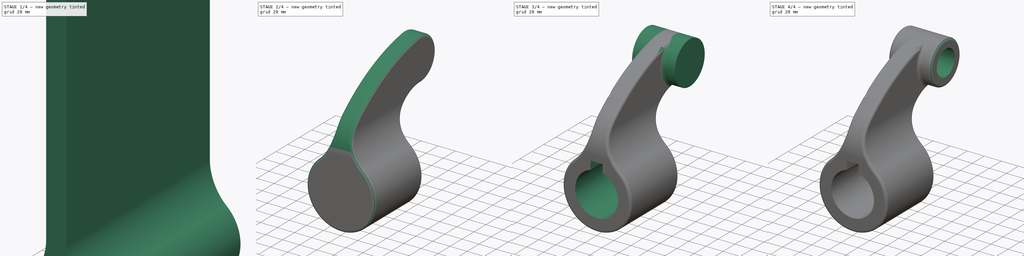
[diagram: build sequence overview — one tinted view per stage of 4, left to right]
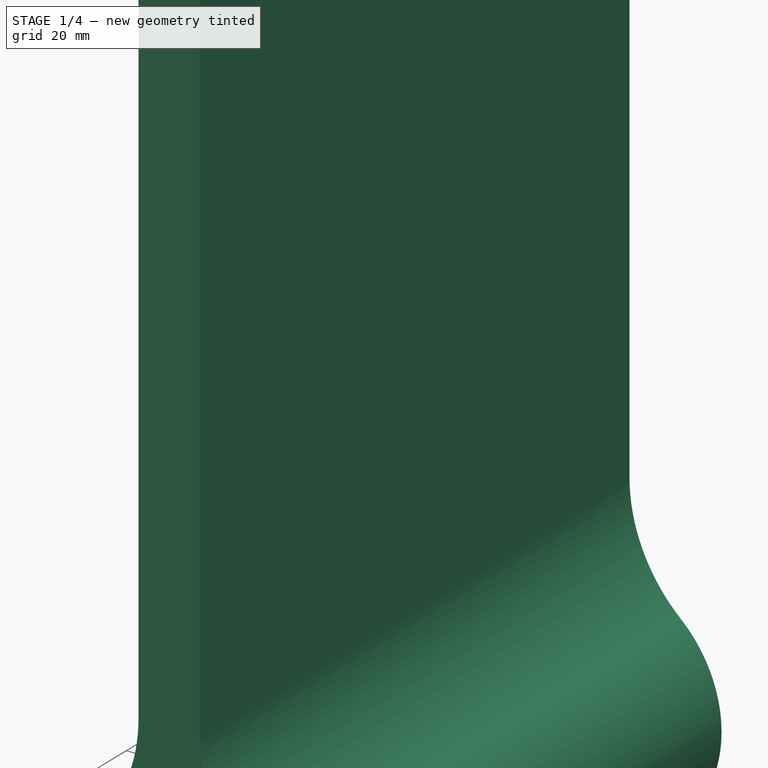
[diagram: stage 1 of 4 — iso view after this stage's code; geometry added in this stage tinted green]
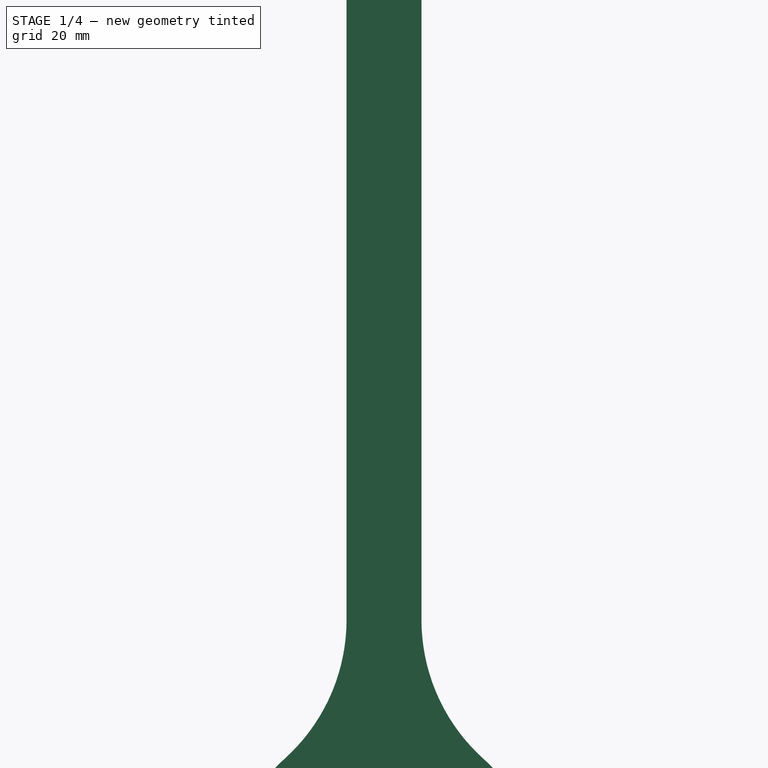
[diagram: stage 1 of 4 — front view after this stage's code; geometry added in this stage tinted green]
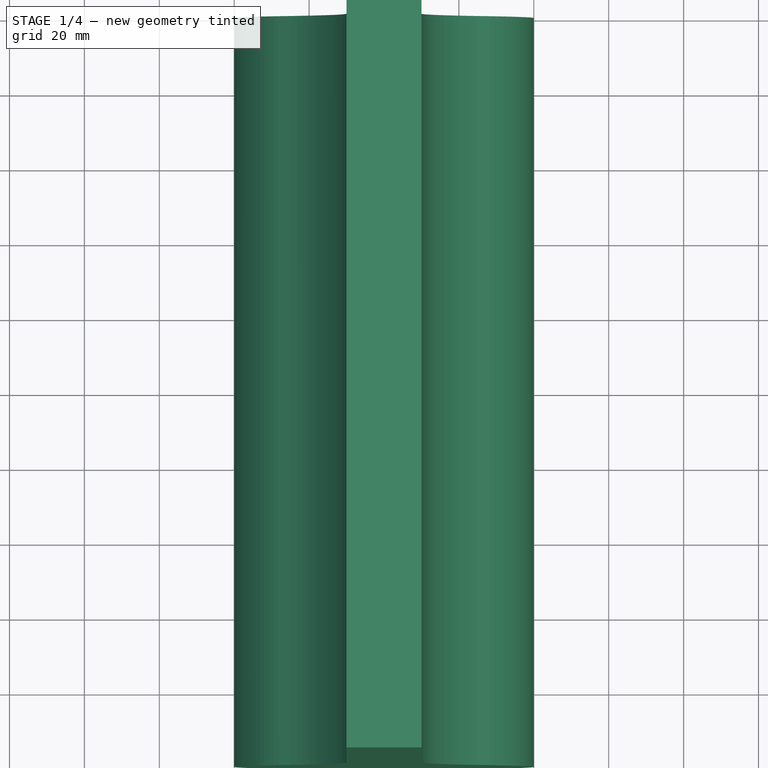
[diagram: stage 1 of 4 — top view after this stage's code; geometry added in this stage tinted green]
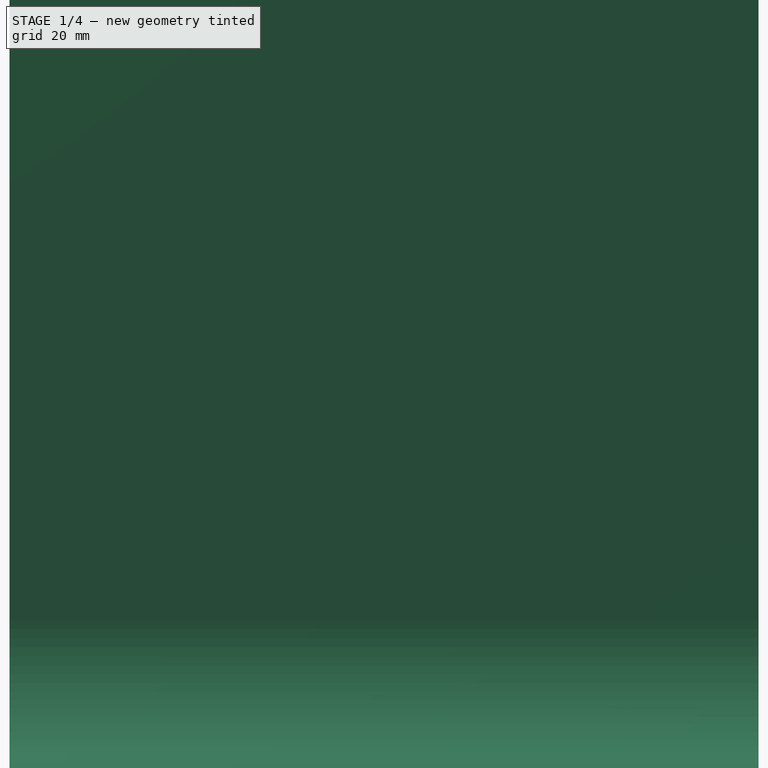
[diagram: stage 1 of 4 — right view after this stage's code; geometry added in this stage tinted green]
FCSTD DOCUMENT  (FreeCAD 0.21R33771 (Git))
Label: ex54
License: All rights reserved
LicenseURL: https://en.wikipedia.org/wiki/All_rights_reserved
objects: Sketcher::SketchObject×5, PartDesign::Fillet×4, PartDesign::Pocket×3, PartDesign::Pad×2, PartDesign::Body×1
note: 24 computed .brp shape members not serialized (recipe doc carries the construction recipe); baked Part::Feature solids carry a one-line shape summary decoded from their .brp

FEATURE [Sketcher::SketchObject] Sketch
  FullyConstrained = false
  MapMode = 5
  Placement = pos=(0,0,0) rot=(1,0,0;1.5708rad)
  Support = -> [XZ_Plane]
  sketch-geometry (5):
    g0: ArcOfCircle CenterX=-1.54e-14 CenterY=0 CenterZ=0 NormalX=0 NormalY=0 NormalZ=1 AngleXU=0 Radius=40 StartAngle=1.82348 EndAngle=7.6013
    g1: LineSegment StartX=-10 StartY=38.7298 StartZ=0 EndX=-10 EndY=300 EndZ=0
    g2: LineSegment StartX=-10 StartY=300 StartZ=0 EndX=10 EndY=300 EndZ=0
    g3: LineSegment StartX=10 StartY=300 StartZ=0 EndX=10 EndY=38.7298 EndZ=0
    g4: GeomPoint X=0 Y=155.877 Z=0
  constraints (13):
    c: Horizontal(g2)
    c: PointOnObject(g4,g-2)
    c: Coincident(g0,g3)
    c: Coincident(g0,g1)
    c: Parallel(g1,g3)
    c: Parallel(g1,g-2)
    c: Symmetric(g0,g0,g-2)
    c: Radius(g0) = 40
    c: Coincident(g0,g-1)
    c: Coincident(g3,g2)
    c: Coincident(g2,g1)
    c: DistanceX(g2,g2) = 20
    c: DistanceY(g0,g2) = 300
FEATURE [PartDesign::Pad] Pad
  Direction = (0,-1,-2e-16)
  Length = 200
  Length2 = 10
  Placement = pos=(0,0,0) rot=(1,0,0;1.5708rad)
  Profile = -> Sketch
  ReferenceAxis = -> Sketch [N_Axis]
  Reversed = true
  Type = 0
FEATURE [PartDesign::Fillet] Fillet
  Base = -> Pad [Edge2,Edge1]
  BaseFeature = -> Pad
  Placement = pos=(0,0,0) rot=(1,0,0;1.5708rad)
  Radius = 50
  SupportTransform = false
  UseAllEdges = false
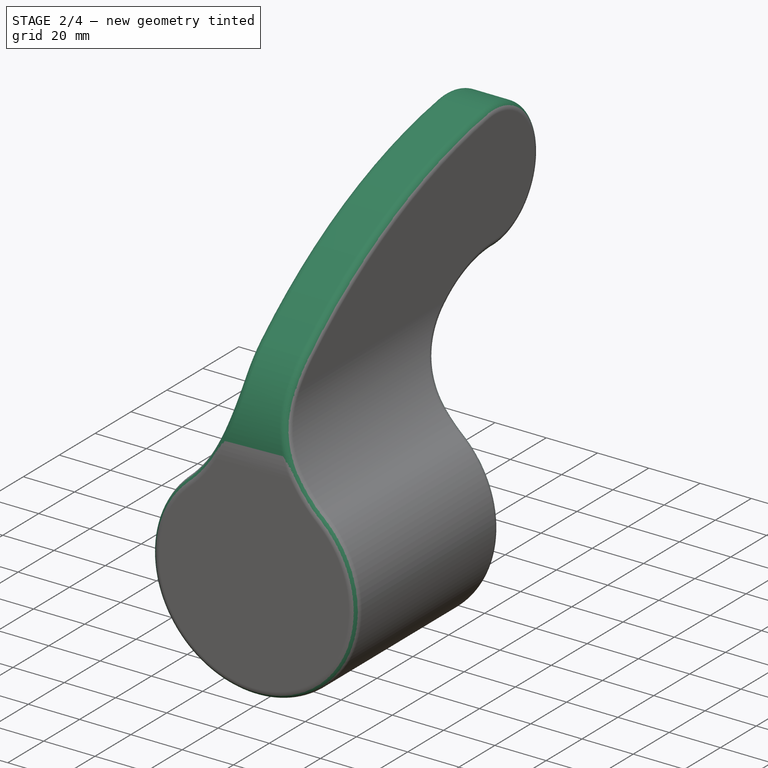
[diagram: stage 2 of 4 — iso view after this stage's code; geometry added in this stage tinted green]
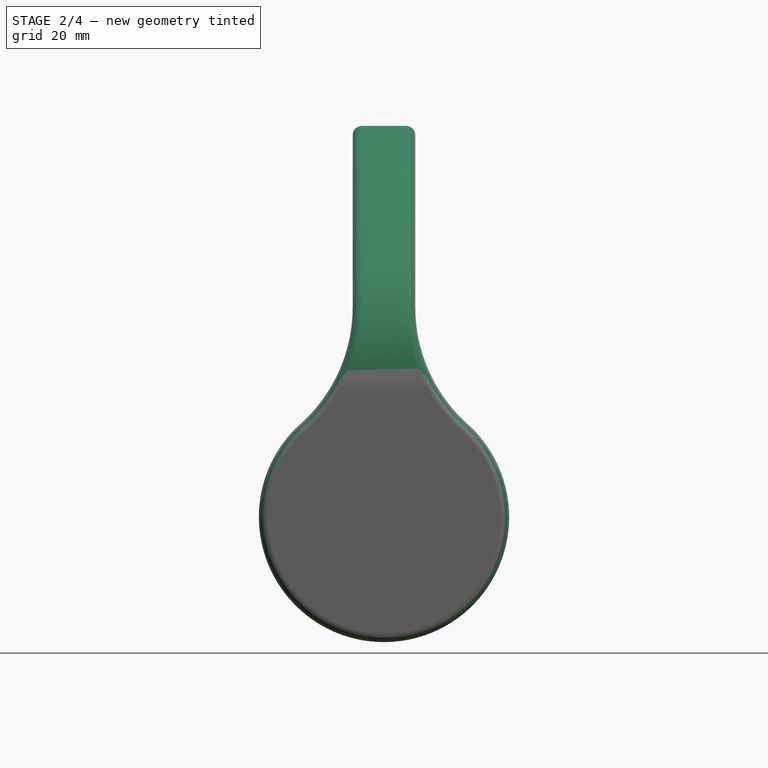
[diagram: stage 2 of 4 — front view after this stage's code; geometry added in this stage tinted green]
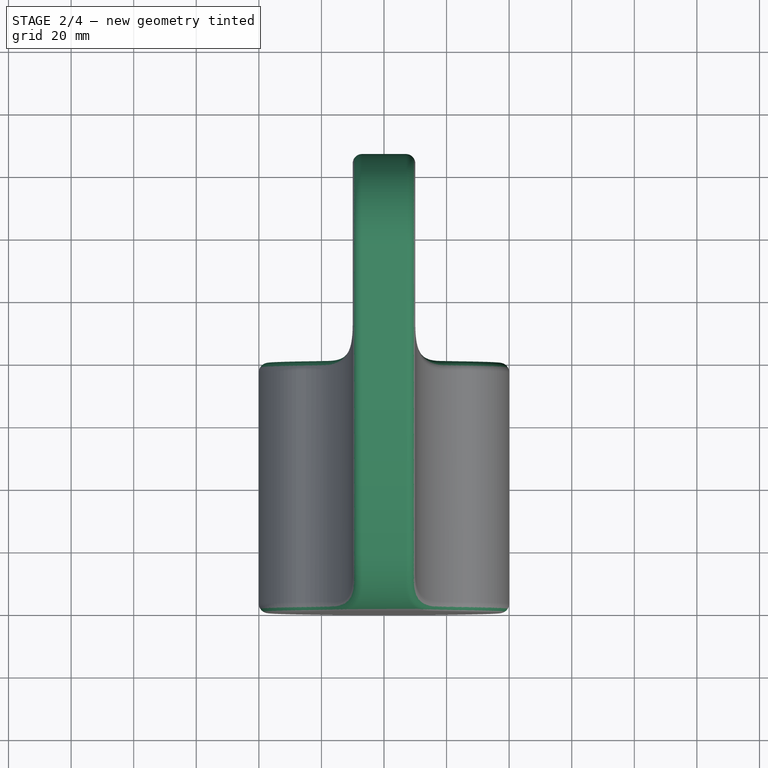
[diagram: stage 2 of 4 — top view after this stage's code; geometry added in this stage tinted green]
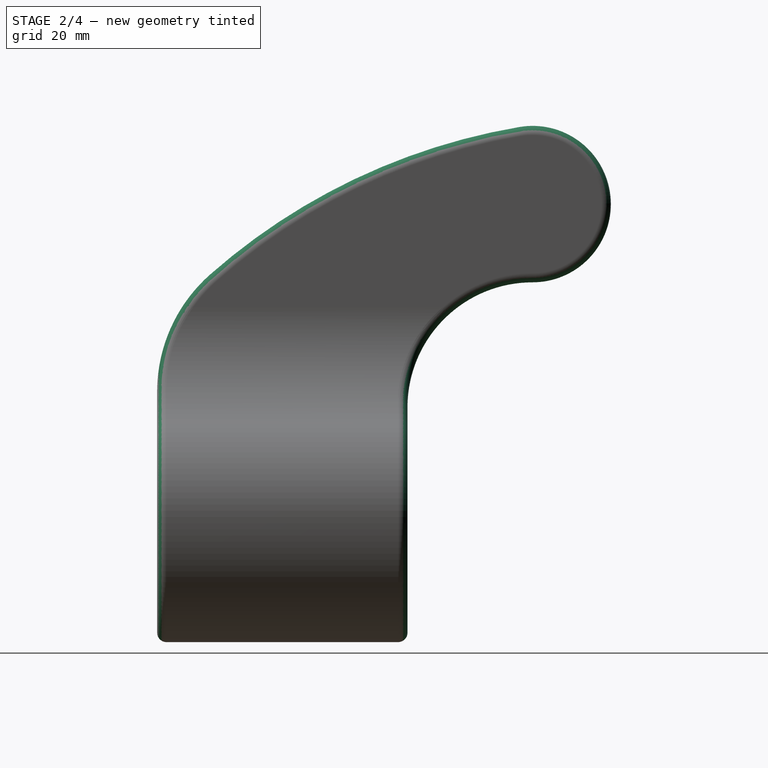
[diagram: stage 2 of 4 — right view after this stage's code; geometry added in this stage tinted green]
FEATURE [Sketcher::SketchObject] Sketch001
  FullyConstrained = false
  MapMode = 5
  Placement = pos=(0,-3e-16,0) rot=(1,0,0;1.5708rad)
  Support = -> [Fillet]
  sketch-geometry (5):
    g0: ArcOfCircle CenterX=0 CenterY=0 CenterZ=0 NormalX=0 NormalY=0 NormalZ=1 AngleXU=0 Radius=25 StartAngle=1.85459 EndAngle=7.57019
    g1: LineSegment StartX=-7 StartY=33.8005 StartZ=0 EndX=7 EndY=33.8005 EndZ=0
    g2: LineSegment StartX=7 StartY=33.8005 StartZ=0 EndX=7 EndY=24 EndZ=0
    g3: GeomPoint X=0 Y=0 Z=0
    g4: LineSegment StartX=-7 StartY=24 StartZ=0 EndX=-7 EndY=33.8005 EndZ=0
  constraints (10):
    c: Coincident(g0,g-1)
    c: Coincident(g4,g1)
    c: Coincident(g1,g2)
    c: Horizontal(g1)
    c: Vertical(g2)
    c: Coincident(g3,g0)
    c: DistanceX(g1,g1) = 14
    c: Radius(g0) = 25
    c: Coincident(g0,g2)
    c: Coincident(g4,g0)
FEATURE [Sketcher::SketchObject] Sketch002
  FullyConstrained = true
  MapMode = 5
  Placement = pos=(0,0,0) rot=(0.57735,0.57735,0.57735;2.0944rad)
  Support = -> [YZ_Plane]
  sketch-geometry (9):
    g0: ArcOfCircle CenterX=120 CenterY=100 CenterZ=0 NormalX=0 NormalY=0 NormalZ=1 AngleXU=0 Radius=25 StartAngle=4.71239 EndAngle=8.02136
    g1: ArcOfCircle CenterX=50 CenterY=40 CenterZ=0 NormalX=0 NormalY=0 NormalZ=1 AngleXU=0 Radius=50 StartAngle=2.29298 EndAngle=3.14159
    g2: ArcOfCircle CenterX=149.154 CenterY=-72.5545 CenterZ=0 NormalX=0 NormalY=0 NormalZ=1 AngleXU=0 Radius=200 StartAngle=1.73817 EndAngle=2.29298
    g3: LineSegment StartX=0 StartY=40 StartZ=0 EndX=0 EndY=0 EndZ=0
    g4: ArcOfCircle CenterX=120 CenterY=35 CenterZ=0 NormalX=0 NormalY=0 NormalZ=1 AngleXU=0 Radius=40 StartAngle=1.5708 EndAngle=3.14159
    g5: LineSegment StartX=80 StartY=35 StartZ=0 EndX=80 EndY=0 EndZ=0
    g6: LineSegment StartX=0 StartY=0 StartZ=0 EndX=-1.066e-13 EndY=-150.13 EndZ=0
    g7: LineSegment StartX=80 StartY=0 StartZ=0 EndX=80 EndY=-150.13 EndZ=0
    g8: ArcOfCircle CenterX=40 CenterY=194.104 CenterZ=0 NormalX=0 NormalY=0 NormalZ=1 AngleXU=0 Radius=346.55 StartAngle=4.82807 EndAngle=10.8799
  constraints (26):
    c: DistanceX(g-1,g0) = 120
    c: DistanceY(g-1,g0) = 100
    c: Radius(g0) = 25
    c: Radius(g1) = 50
    c: Tangent(g2,g1) = -1.5708
    c: Radius(g2) = 200
    c: Tangent(g3,g1) = -1.5708
    c: DistanceY(g-1,g1) = 40
    c: Coincident(g3,g-1)
    c: PointOnObject(g5,g-1)
    c: Vertical(g5)
    c: Tangent(g4,g0) = 1.5708
    c: Tangent(g4,g5) = -1.5708
    c: DistanceX(g3,g5) = 80
    c: Radius(g4) = 40
    c: Tangent(g0,g2) = -1.5708
    c: Coincident(g6,g3)
    c: PointOnObject(g6,g-2)
    c: Coincident(g7,g5)
    c: Vertical(g7)
    c: Coincident(g8,g6)
    c: Coincident(g8,g7)
    c: Horizontal(g7,g6)
    c: Vertical(g3)
    c: Radius(g8) = 346.55
    c: DistanceY(g6,g6) = 150.13
FEATURE [PartDesign::Pocket] Pocket
  BaseFeature = -> Fillet
  Direction = (-1,2e-16,-3e-16)
  Length = 5
  Length2 = 5
  Midplane = true
  Placement = pos=(0,0,0) rot=(1,0,0;1.5708rad)
  Profile = -> Sketch002
  ReferenceAxis = -> Sketch002 [N_Axis]
  Type = 1
FEATURE [PartDesign::Fillet] Fillet001
  Base = -> Pocket [Edge30]
  BaseFeature = -> Pocket
  Placement = pos=(0,0,0) rot=(1,0,0;1.5708rad)
  Radius = 3
  SupportTransform = false
  UseAllEdges = false
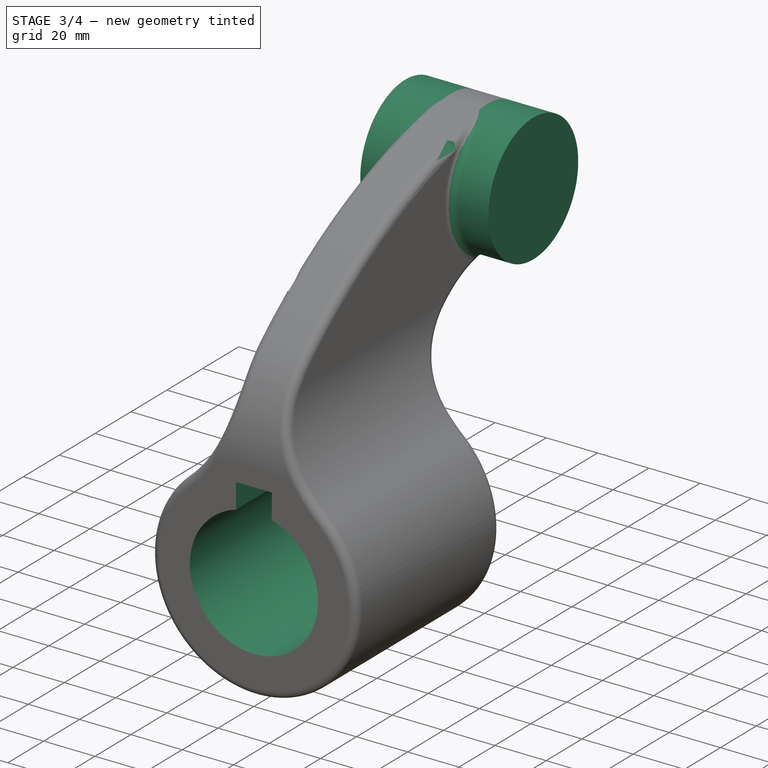
[diagram: stage 3 of 4 — iso view after this stage's code; geometry added in this stage tinted green]
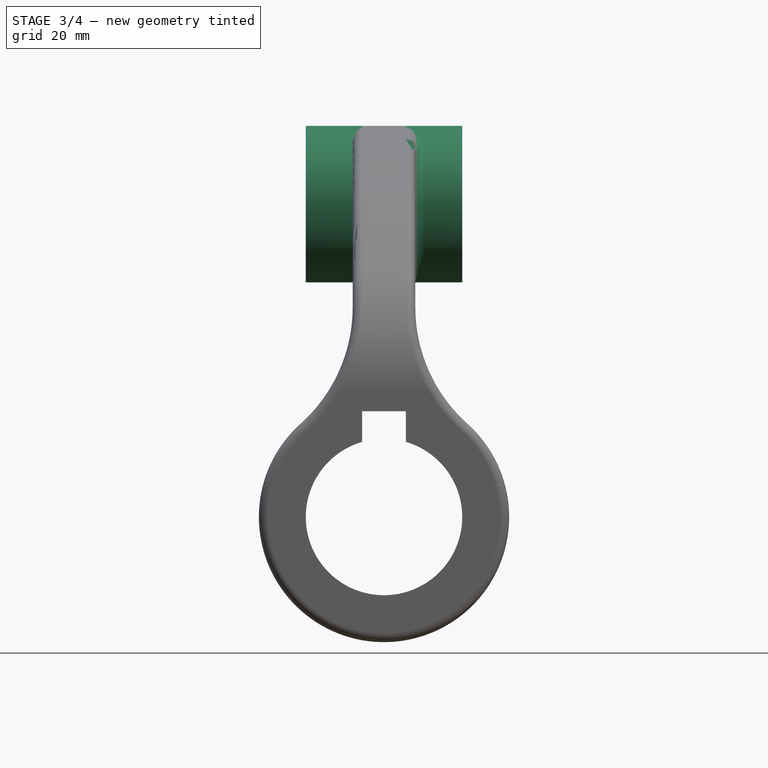
[diagram: stage 3 of 4 — front view after this stage's code; geometry added in this stage tinted green]
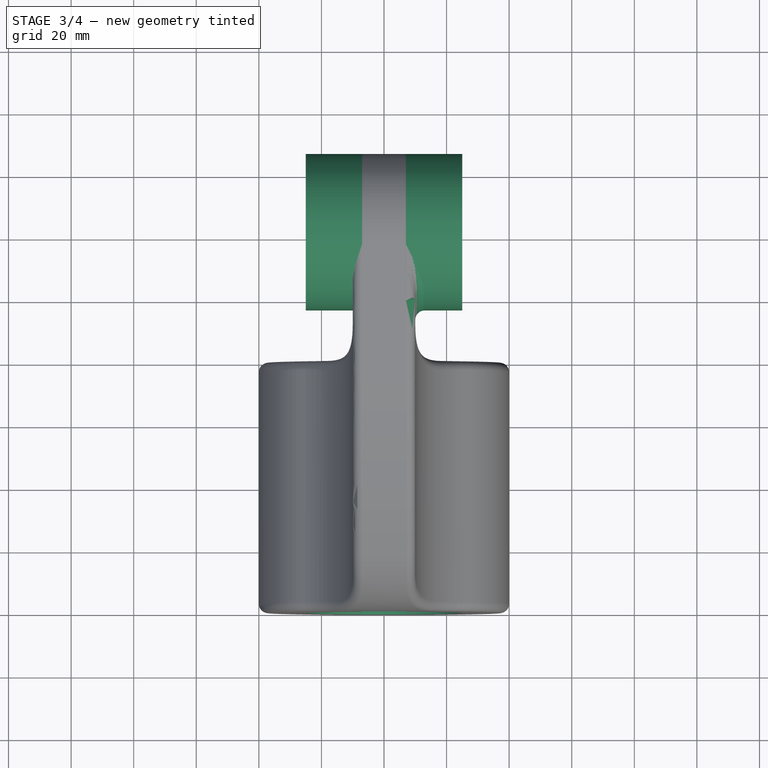
[diagram: stage 3 of 4 — top view after this stage's code; geometry added in this stage tinted green]
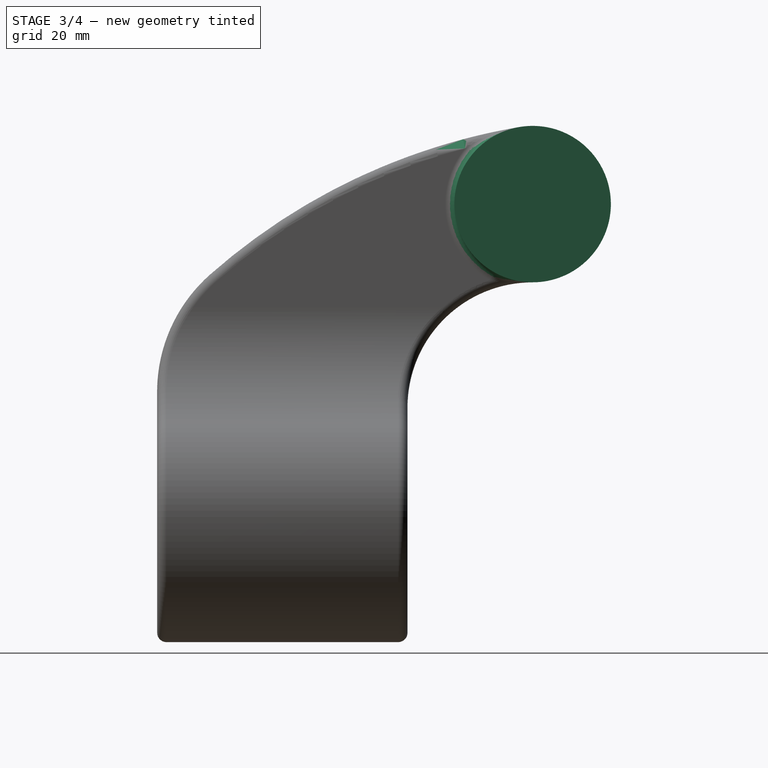
[diagram: stage 3 of 4 — right view after this stage's code; geometry added in this stage tinted green]
FEATURE [PartDesign::Pocket] Pocket001
  BaseFeature = -> Fillet001
  Direction = (0,1,-2e-16)
  Length = 5
  Length2 = 5
  Placement = pos=(0,0,0) rot=(1,0,0;1.5708rad)
  Profile = -> Sketch001
  ReferenceAxis = -> Sketch001 [N_Axis]
  Type = 1
FEATURE [Sketcher::SketchObject] Sketch003
  AttachmentOffset = pos=(0,0,-10) rot=(0,0,1;0rad)
  ExternalGeometry = -> [Pocket001]
  FullyConstrained = true
  MapMode = 5
  Placement = pos=(3.6e-15,0,-2.1e-15) rot=(0.707107,0,0.707107;3.14159rad)
  Support = -> [Pocket001]
  sketch-geometry (1):
    g0: Circle CenterX=100 CenterY=-120 CenterZ=0 NormalX=0 NormalY=0 NormalZ=1 AngleXU=0 Radius=25
  constraints (2):
    c: Coincident(g0,g-3)
    c: Radius(g0) = 25
FEATURE [PartDesign::Pad] Pad001
  BaseFeature = -> Pocket001
  Direction = (1,0,2e-16)
  Length = 50
  Length2 = 10
  Midplane = true
  Placement = pos=(0,0,0) rot=(1,0,0;1.5708rad)
  Profile = -> Sketch003
  ReferenceAxis = -> Sketch003 [N_Axis]
  Type = 0
FEATURE [PartDesign::Fillet] Fillet002
  Base = -> Pad001 [Edge42]
  BaseFeature = -> Pad001
  Placement = pos=(0,0,0) rot=(1,0,0;1.5708rad)
  Radius = 3
  SupportTransform = false
  UseAllEdges = false
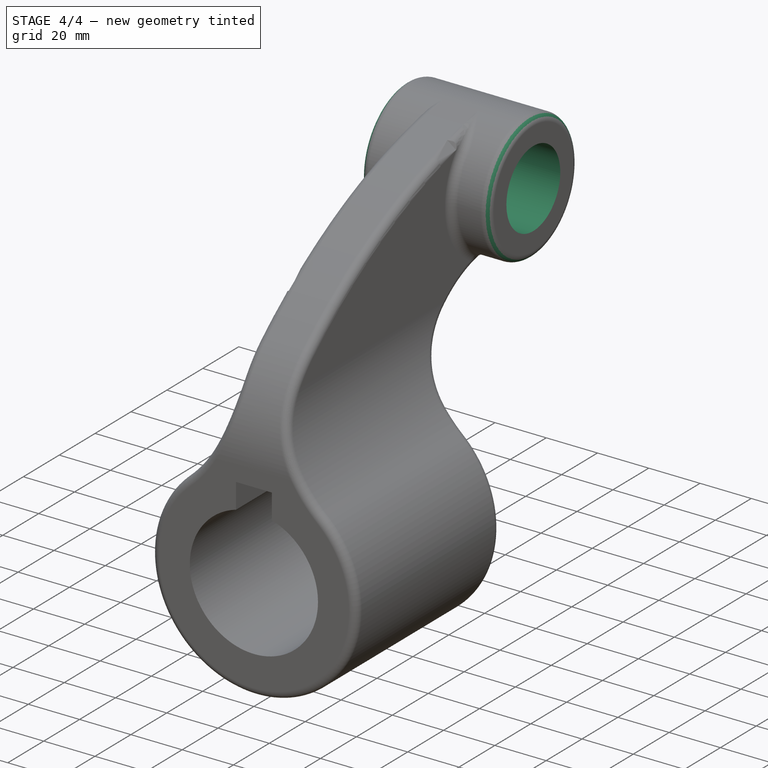
[diagram: stage 4 of 4 — iso view after this stage's code; geometry added in this stage tinted green]
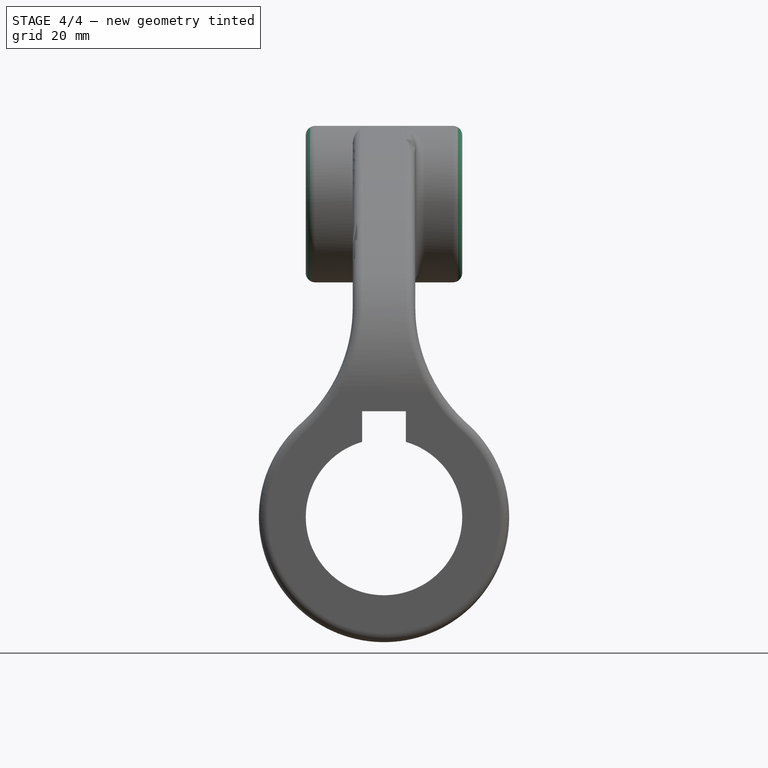
[diagram: stage 4 of 4 — front view after this stage's code; geometry added in this stage tinted green]
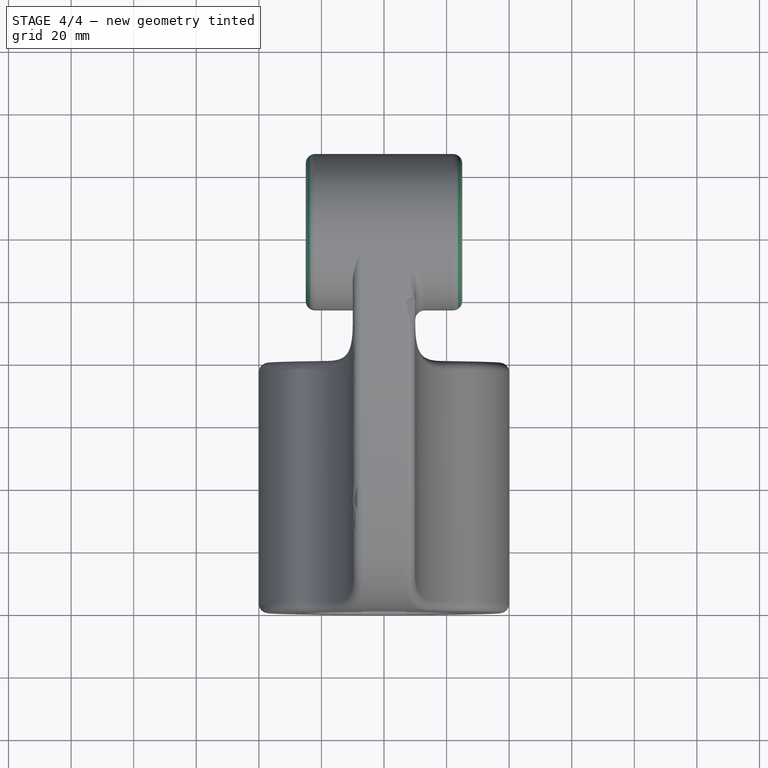
[diagram: stage 4 of 4 — top view after this stage's code; geometry added in this stage tinted green]
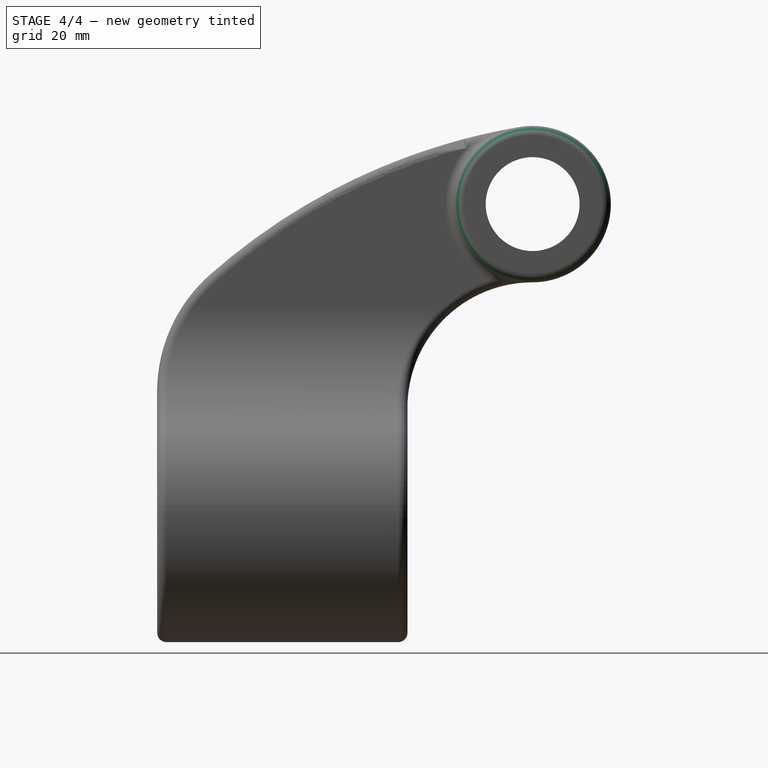
[diagram: stage 4 of 4 — right view after this stage's code; geometry added in this stage tinted green]
FEATURE [Sketcher::SketchObject] Sketch004
  ExternalGeometry = -> [Fillet002]
  FullyConstrained = true
  MapMode = 5
  Placement = pos=(25,0,5.6e-15) rot=(0.707107,0,0.707107;3.14159rad)
  Support = -> [Fillet002]
  sketch-geometry (1):
    g0: Circle CenterX=100 CenterY=-120 CenterZ=0 NormalX=0 NormalY=0 NormalZ=1 AngleXU=0 Radius=15
  constraints (2):
    c: Coincident(g0,g-3)
    c: Radius(g0) = 15
FEATURE [PartDesign::Pocket] Pocket002
  BaseFeature = -> Fillet002
  Direction = (-1,0,-2e-16)
  Length = 5
  Length2 = 5
  Placement = pos=(0,0,0) rot=(1,0,0;1.5708rad)
  Profile = -> Sketch004
  ReferenceAxis = -> Sketch004 [N_Axis]
  Type = 1
FEATURE [PartDesign::Fillet] Fillet003
  Base = -> Pocket002 [Edge33,Edge109]
  BaseFeature = -> Pocket002
  Placement = pos=(0,0,0) rot=(1,0,0;1.5708rad)
  Radius = 3
  SupportTransform = false
  UseAllEdges = false
FEATURE [PartDesign::Body] Body
  Group = -> [Sketch,Pad,Fillet,Sketch001,Sketch002,Pocket,Fillet001,Pocket001,Sketch003,Pad001,Fillet002,Sketch004,Pocket002,Fillet003]
  Origin = -> Origin
  Tip = -> Fillet003
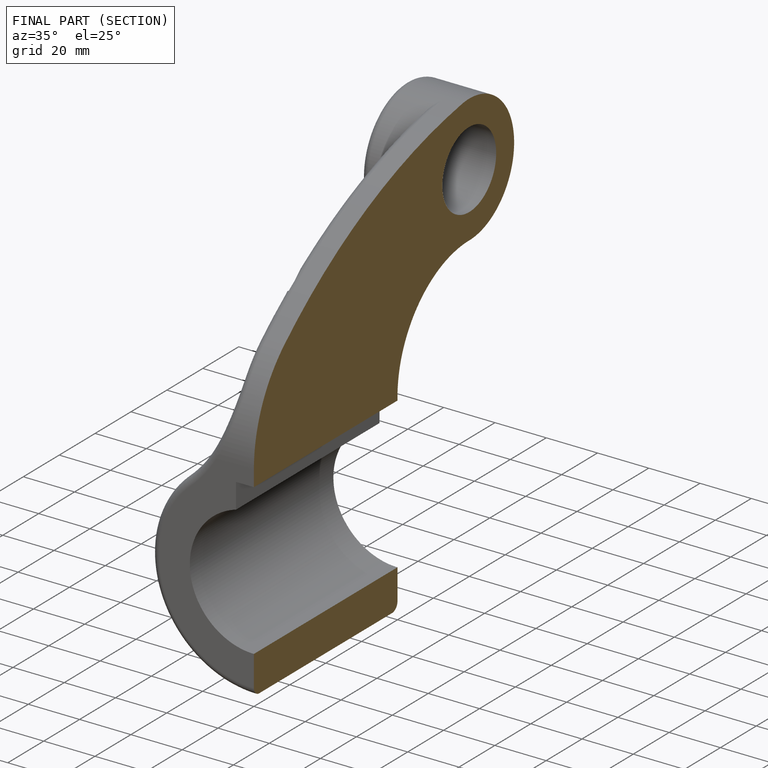
[diagram: finished part — half-section view (interior)]
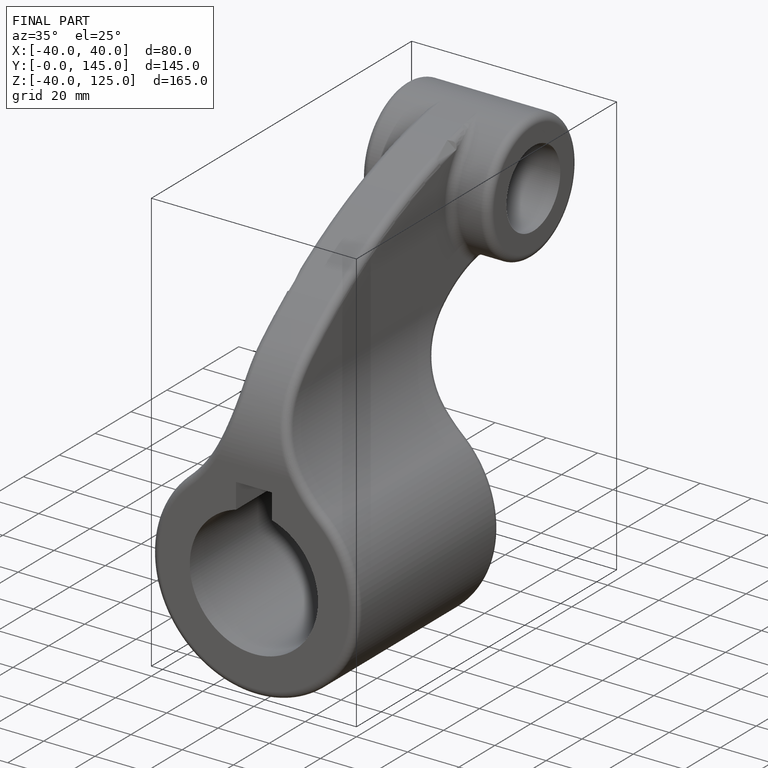
[diagram: finished part — iso view with bounding-box wireframe]
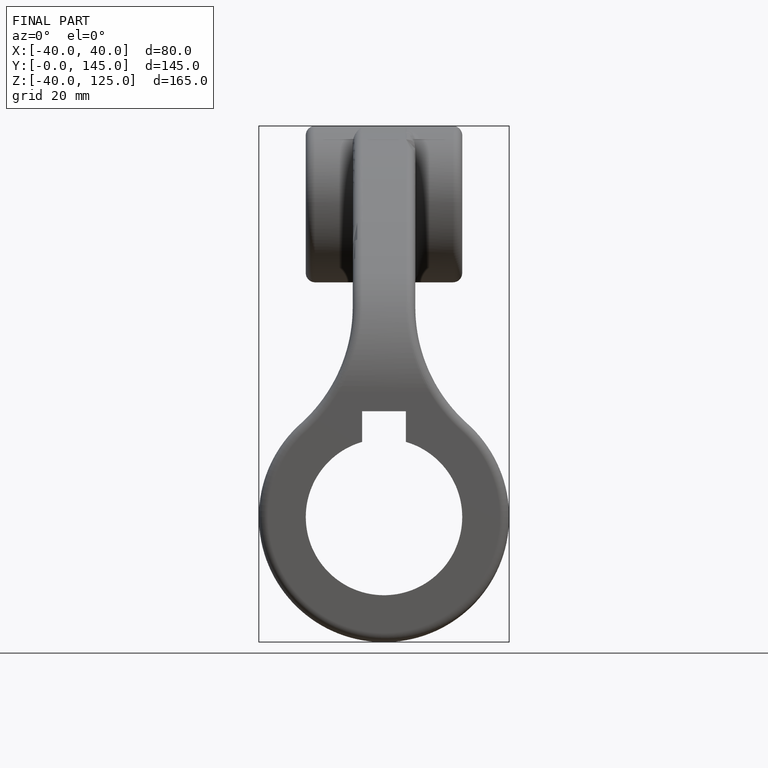
[diagram: finished part — front view with bounding-box wireframe]
